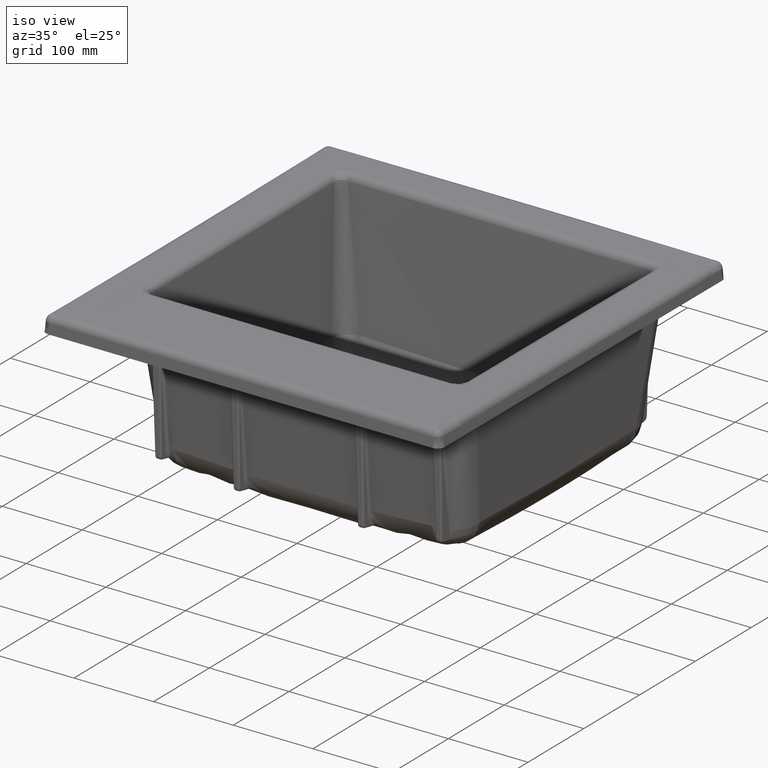
[diagram: clean part render]
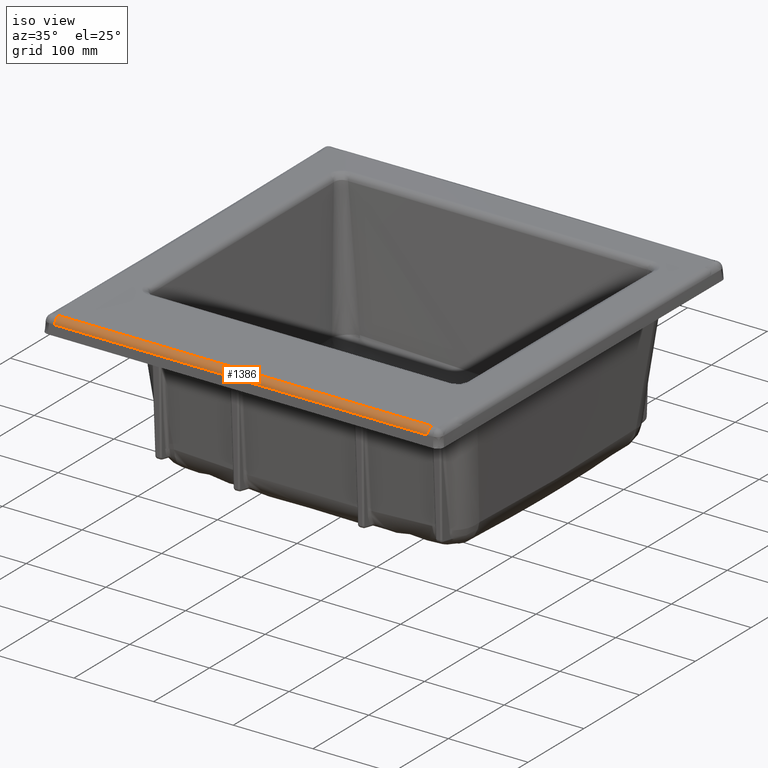
[diagram: same view with one face highlighted and labeled with its STEP entity id]
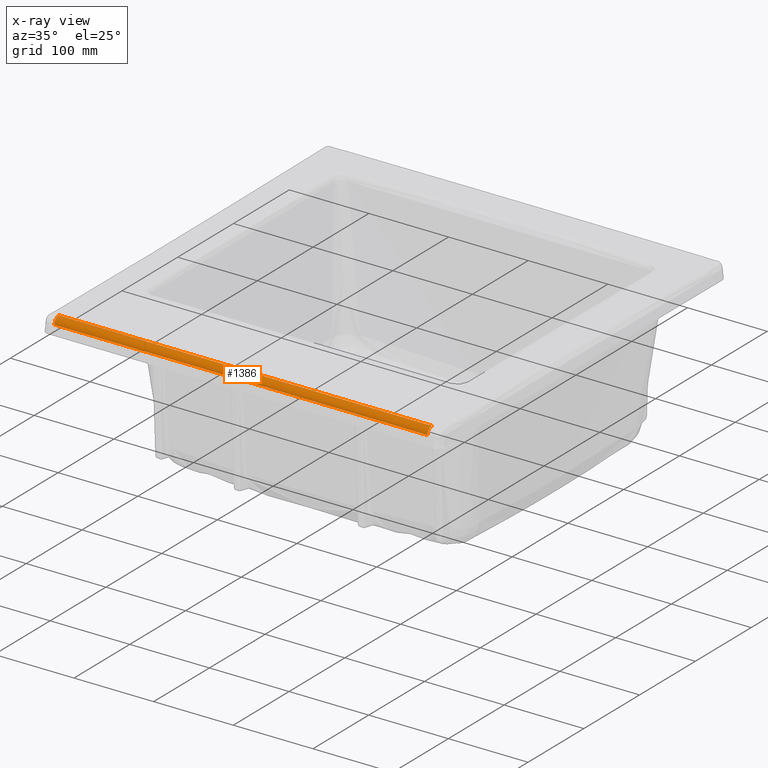
[diagram: x-ray of the same camera — body ghosted, the highlighted face saturated]
A machine part, iso view. The second image highlights one B-rep face of the part: STEP entity #1386.
The next image is the same camera in x-ray: the body ghosted, the highlighted face saturated — about 0% of this face is hidden behind the body in this view.
In plain terms, the highlighted cylindrical surface (edge-blend (fillet) strip) has radius 8 mm, axis along (1, 0, 0).
Its self-contained STEP definition (entity closure, byte-faithful):
#81=CYLINDRICAL_SURFACE('',#4858,8.);
#185=LINE('',#7761,#310);
#186=LINE('',#7886,#311);
#310=VECTOR('',#5209,1.);
#311=VECTOR('',#5232,1.);
#653=FACE_OUTER_BOUND('',#1733,.T.);
#1386=ADVANCED_FACE('',(#653),#81,.T.);
#1733=EDGE_LOOP('',(#2250,#2251,#2252,#2253));
#2250=ORIENTED_EDGE('',*,*,#4042,.F.);
#2251=ORIENTED_EDGE('',*,*,#4043,.F.);
#2252=ORIENTED_EDGE('',*,*,#4044,.F.);
#2253=ORIENTED_EDGE('',*,*,#4024,.T.);
#3532=VERTEX_POINT('',#7751);
#3533=VERTEX_POINT('',#7760);
#3542=VERTEX_POINT('',#7885);
#3543=VERTEX_POINT('',#7887);
#4024=EDGE_CURVE('',#3532,#3533,#185,.T.);
#4042=EDGE_CURVE('',#3542,#3533,#4676,.T.);
#4043=EDGE_CURVE('',#3543,#3542,#186,.T.);
#4044=EDGE_CURVE('',#3532,#3543,#4677,.T.);
#4676=CIRCLE('',#4856,8.);
#4677=CIRCLE('',#4857,8.);
#4856=AXIS2_PLACEMENT_3D('',#7884,#5230,#5231);
#4857=AXIS2_PLACEMENT_3D('',#7888,#5233,#5234);
#4858=AXIS2_PLACEMENT_3D('',#7889,#5235,#5236);
#5209=DIRECTION('',(-1.,0.,0.));
#5230=DIRECTION('',(-1.,0.,0.));
#5231=DIRECTION('',(0.,0.,1.));
#5232=DIRECTION('',(-1.,0.,0.));
#5233=DIRECTION('',(1.,2.42463255970529E-16,3.46738610315025E-15));
#5234=DIRECTION('',(-3.46944695195361E-15,0.,1.));
#5235=DIRECTION('',(1.,0.,0.));
#5236=DIRECTION('',(0.,0.,1.));
#7751=CARTESIAN_POINT('',(234.08626680649,7.52808248261349,-0.0684371134783099));
#7760=CARTESIAN_POINT('',(-234.0862668164,7.52808248704708,-0.06843711351595));
#7761=CARTESIAN_POINT('',(0.,7.52808248246031,-0.0684371134769119));
#7884=CARTESIAN_POINT('',(-234.08626680648,7.45535821480692,-8.06810655543996));
#7885=CARTESIAN_POINT('',(-234.08626680648,-0.525154187042617,-7.51005476221133));
#7886=CARTESIAN_POINT('',(-248.5,-0.525154187272618,-7.51005476550051));
#7887=CARTESIAN_POINT('',(234.086266806493,-0.525154186929428,-7.51005476059267));
#7888=CARTESIAN_POINT('',(234.086266806493,7.45535821480598,-8.06810655545351));
#7889=CARTESIAN_POINT('',(-248.5,7.45535821480598,-8.06810655545351));